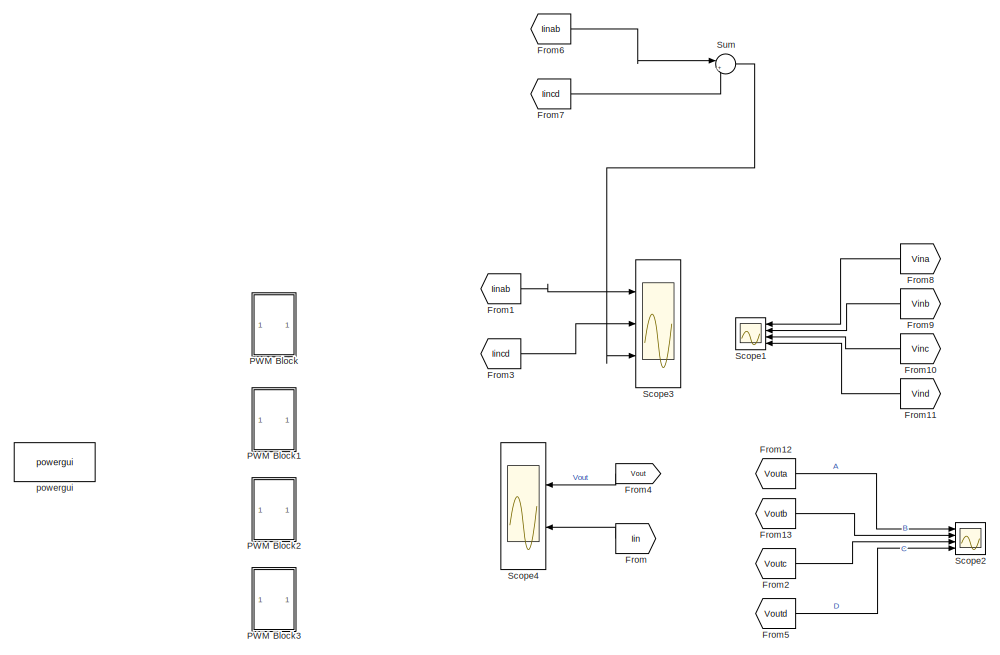
[diagram: root canvas - part 1/3, top center region]
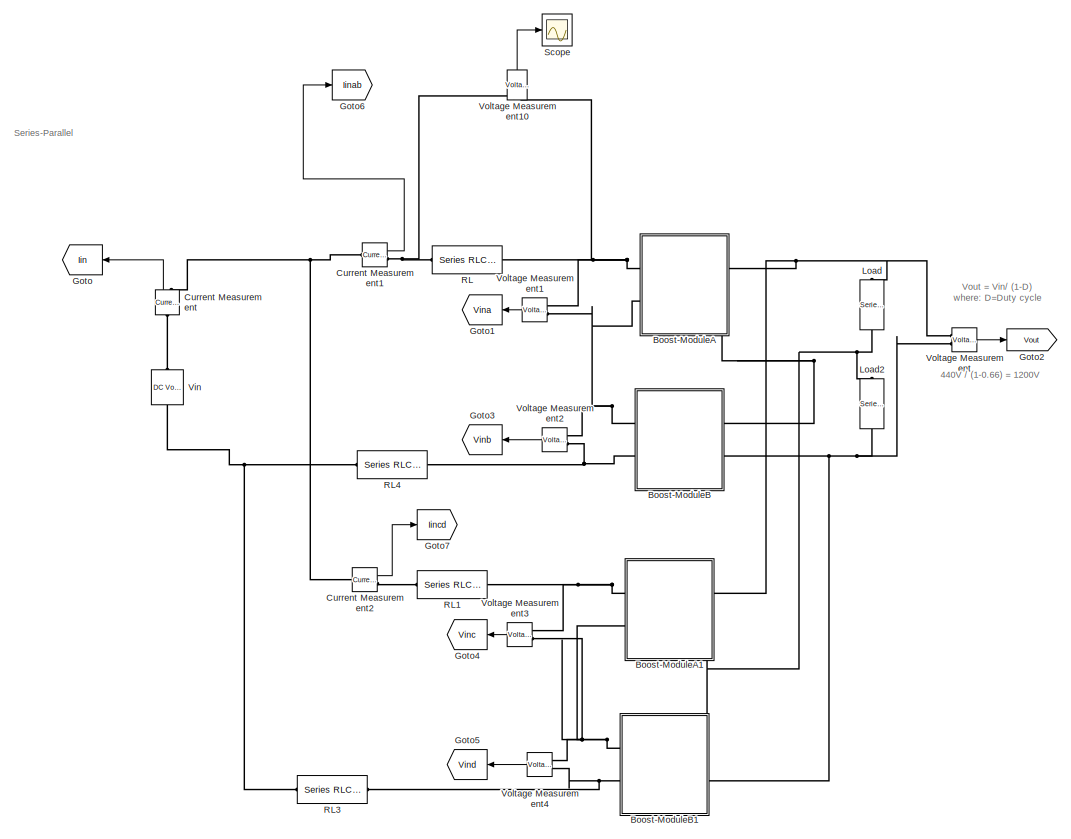
[diagram: root canvas - part 2/3, bottom left region]
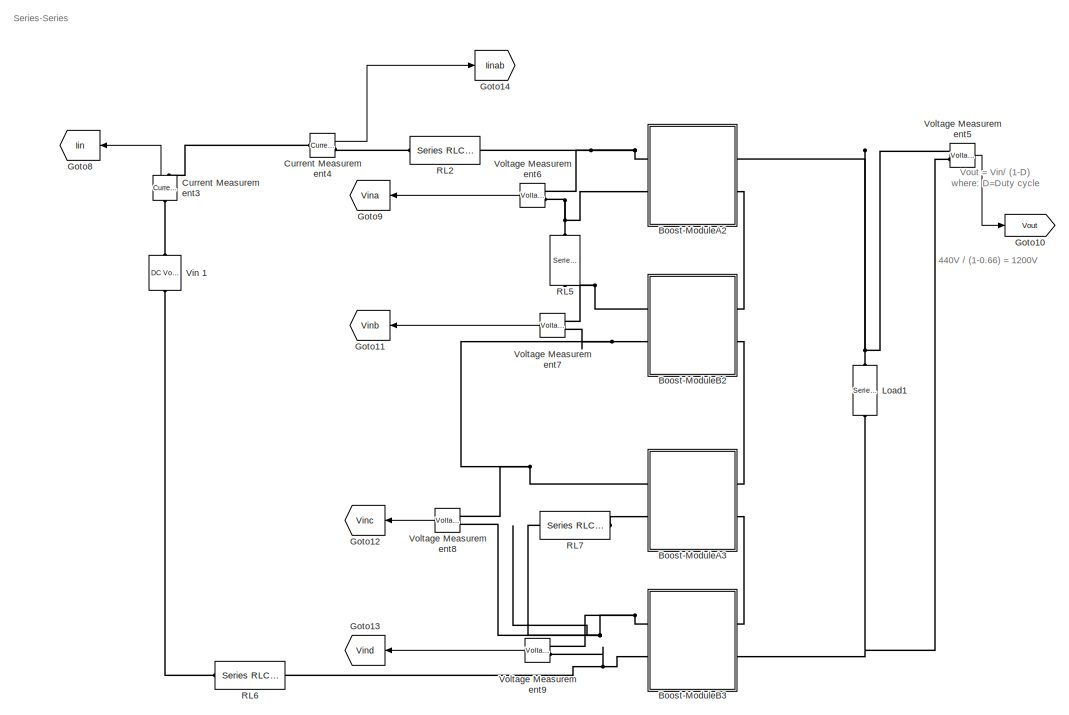
[diagram: root canvas - part 3/3, bottom right region]
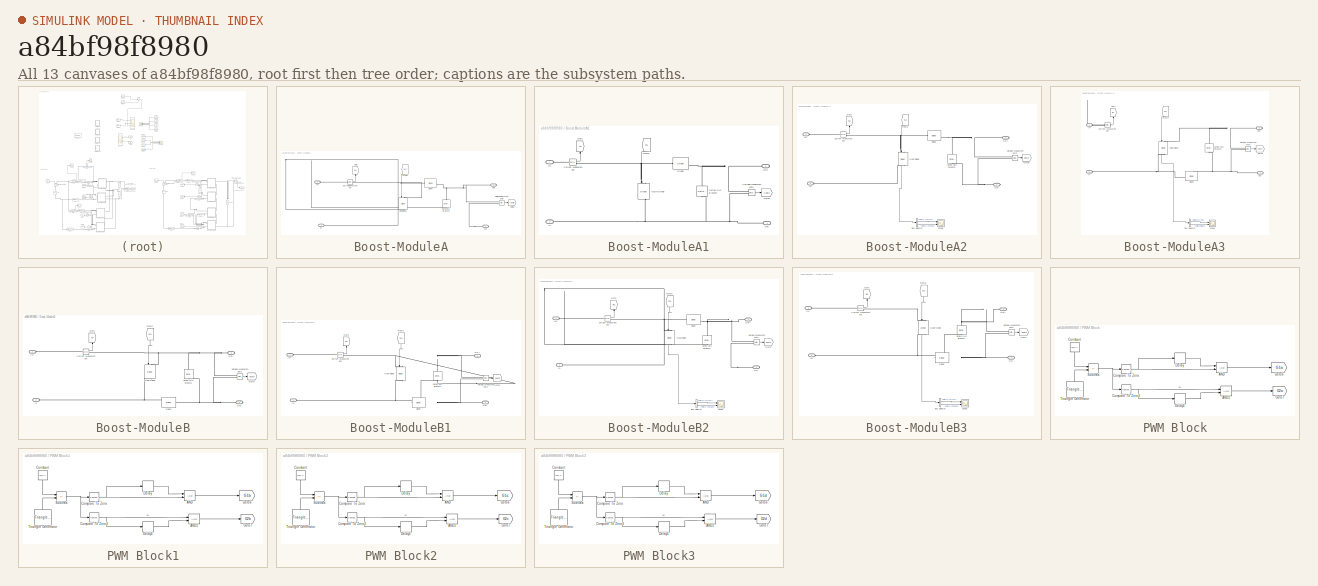
[diagram: thumbnail index - all 13 canvases of the model, root first then tree order]
MODEL slx_a84bf98f8980
KIND model
CONFIG AbsTol = auto
CONFIG EnableMultiTasking = on
CONFIG FixedStep = sampleTime
CONFIG InitFcn = boost_parameters
CONFIG MaxStep = 1e-4
CONFIG MinStep = auto
CONFIG RelTol = 1e-4
CONFIG SampleTimeConstraint = Unconstrained
CONFIG SolverName = FixedStepDiscrete
CONFIG StartTime = 0.0
CONFIG StopTime = 0.5
WORKSPACE source: mxarray member
WORKSPACE Phase1 = 0
BLOCK [SubSystem] Boost-ModuleA
  Ports = [0, 0, 0, 0, 0, 2, 2]
  RequestExecContextInheritance = off
BLOCK [Reference] Boost-ModuleA/Current Measurement  REF=spsCurrentMeasurementLib/Current Measurement
  Ports = [0, 1, 0, 0, 0, 1, 1]
  SourceBlock = spsCurrentMeasurementLib/Current Measurement
  SourceProductBaseCode = PS
  SourceType = Current Measurement
  UserDataPersistent = on
BLOCK [Reference] Boost-ModuleA/Diode  REF=spsDiodeLib/Diode
  Ports = [0, 1, 0, 0, 0, 1, 1]
  SourceBlock = spsDiodeLib/Diode
  SourceProductBaseCode = PS
  SourceType = Diode
BLOCK [From] Boost-ModuleA/From5
  GotoTag = G1a
  NameLocation = left
  TagVisibility = global
BLOCK [Goto] Boost-ModuleA/Goto
  GotoTag = Iina
  NameLocation = right
  TagVisibility = global
BLOCK [Goto] Boost-ModuleA/Goto6
  GotoTag = Vouta
  NameLocation = top
  TagVisibility = global
BLOCK [Reference] Boost-ModuleA/IGBT//Diode  REF=spsIGBTDiodeLib/IGBT//Diode
  NameLocation = left
  Ports = [1, 1, 0, 0, 0, 1, 1]
  SourceBlock = spsIGBTDiodeLib/IGBT//Diode
  SourceProductBaseCode = PS
  SourceType = IGBT/Diode
BLOCK [PMIOPort] Boost-ModuleA/In+
  Side = Left
BLOCK [PMIOPort] Boost-ModuleA/In-
  Port = 2
  Side = Left
BLOCK [PMIOPort] Boost-ModuleA/Out+
  NameLocation = top
  Port = 3
  Side = Right
BLOCK [PMIOPort] Boost-ModuleA/Out-
  NameLocation = top
  Port = 4
  Side = Right
BLOCK [Reference] Boost-ModuleA/Series RLC Branch1  REF=spsSeriesRLCBranchLib/Series RLC Branch
  NameLocation = left
  Ports = [0, 0, 0, 0, 0, 1, 1]
  SourceBlock = spsSeriesRLCBranchLib/Series RLC Branch
  SourceProductBaseCode = PS
  SourceType = Series RLC Branch
BLOCK [Reference] Boost-ModuleA/Voltage Measurement5  REF=spsVoltageMeasurementLib/Voltage Measurement
  Ports = [0, 1, 0, 0, 0, 2]
  SourceBlock = spsVoltageMeasurementLib/Voltage Measurement
  SourceProductBaseCode = PS
  SourceType = Voltage Measurement
  UserDataPersistent = on
BLOCK [SubSystem] Boost-ModuleA1
  Ports = [0, 0, 0, 0, 0, 2, 2]
  RequestExecContextInheritance = off
BLOCK [Reference] Boost-ModuleA1/Current Measurement  REF=spsCurrentMeasurementLib/Current Measurement
  Ports = [0, 1, 0, 0, 0, 1, 1]
  SourceBlock = spsCurrentMeasurementLib/Current Measurement
  SourceProductBaseCode = PS
  SourceType = Current Measurement
  UserDataPersistent = on
BLOCK [Reference] Boost-ModuleA1/Diode  REF=spsDiodeLib/Diode
  Ports = [0, 1, 0, 0, 0, 1, 1]
  SourceBlock = spsDiodeLib/Diode
  SourceProductBaseCode = PS
  SourceType = Diode
BLOCK [From] Boost-ModuleA1/From5
  GotoTag = G1c
  NameLocation = left
  TagVisibility = global
BLOCK [Goto] Boost-ModuleA1/Goto
  GotoTag = Iinc
  NameLocation = right
  TagVisibility = global
BLOCK [Goto] Boost-ModuleA1/Goto6
  GotoTag = Voutc
  NameLocation = top
  TagVisibility = global
BLOCK [Reference] Boost-ModuleA1/IGBT//Diode  REF=spsIGBTDiodeLib/IGBT//Diode
  NameLocation = left
  Ports = [1, 1, 0, 0, 0, 1, 1]
  SourceBlock = spsIGBTDiodeLib/IGBT//Diode
  SourceProductBaseCode = PS
  SourceType = IGBT/Diode
BLOCK [PMIOPort] Boost-ModuleA1/In+
  Side = Left
BLOCK [PMIOPort] Boost-ModuleA1/In-
  Port = 2
  Side = Left
BLOCK [PMIOPort] Boost-ModuleA1/Out+
  NameLocation = top
  Port = 3
  Side = Right
BLOCK [PMIOPort] Boost-ModuleA1/Out-
  NameLocation = top
  Port = 4
  Side = Right
BLOCK [Reference] Boost-ModuleA1/Series RLC Branch1  REF=spsSeriesRLCBranchLib/Series RLC Branch
  NameLocation = left
  Ports = [0, 0, 0, 0, 0, 1, 1]
  SourceBlock = spsSeriesRLCBranchLib/Series RLC Branch
  SourceProductBaseCode = PS
  SourceType = Series RLC Branch
BLOCK [Reference] Boost-ModuleA1/Voltage Measurement5  REF=spsVoltageMeasurementLib/Voltage Measurement
  Ports = [0, 1, 0, 0, 0, 2]
  SourceBlock = spsVoltageMeasurementLib/Voltage Measurement
  SourceProductBaseCode = PS
  SourceType = Voltage Measurement
  UserDataPersistent = on
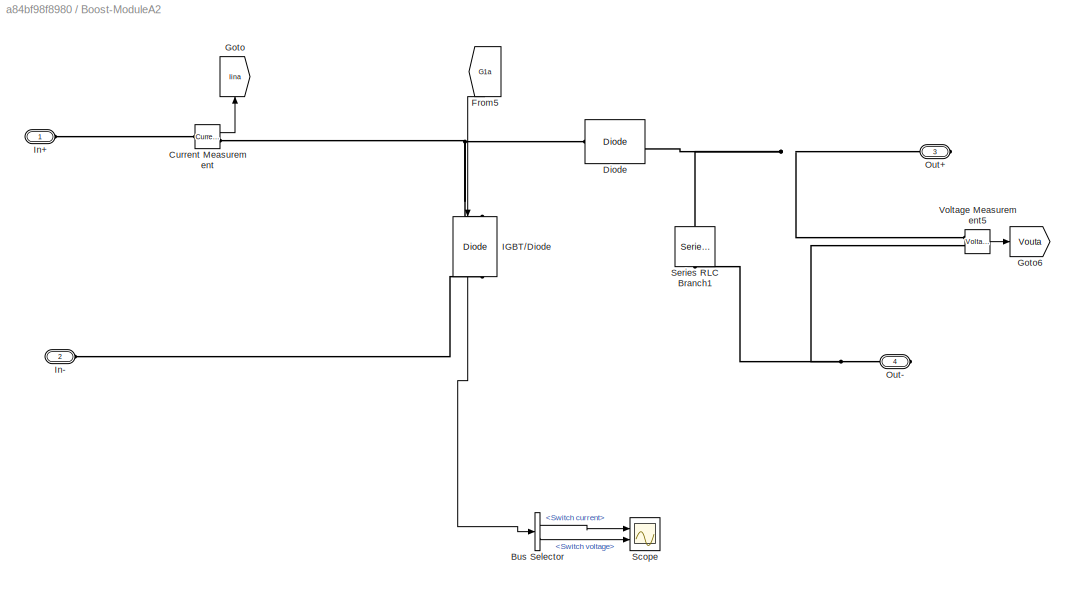
BLOCK [SubSystem] Boost-ModuleA2
  Commented = on
  Ports = [0, 0, 0, 0, 0, 2, 2]
  RequestExecContextInheritance = off
BLOCK [BusSelector] Boost-ModuleA2/Bus Selector
  OutputSignals = Switch current,Switch voltage
  Ports = [1, 2]
BLOCK [Reference] Boost-ModuleA2/Current Measurement  REF=spsCurrentMeasurementLib/Current Measurement
  Ports = [0, 1, 0, 0, 0, 1, 1]
  SourceBlock = spsCurrentMeasurementLib/Current Measurement
  SourceProductBaseCode = PS
  SourceType = Current Measurement
  UserDataPersistent = on
BLOCK [Reference] Boost-ModuleA2/Diode  REF=spsDiodeLib/Diode
  Ports = [0, 1, 0, 0, 0, 1, 1]
  SourceBlock = spsDiodeLib/Diode
  SourceProductBaseCode = PS
  SourceType = Diode
BLOCK [From] Boost-ModuleA2/From5
  GotoTag = G1a
  NameLocation = left
  TagVisibility = global
BLOCK [Goto] Boost-ModuleA2/Goto
  GotoTag = Iina
  NameLocation = right
  TagVisibility = global
BLOCK [Goto] Boost-ModuleA2/Goto6
  GotoTag = Vouta
  NameLocation = top
  TagVisibility = global
BLOCK [Reference] Boost-ModuleA2/IGBT//Diode  REF=spsIGBTDiodeLib/IGBT//Diode
  NameLocation = left
  Ports = [1, 1, 0, 0, 0, 1, 1]
  SourceBlock = spsIGBTDiodeLib/IGBT//Diode
  SourceProductBaseCode = PS
  SourceType = IGBT/Diode
BLOCK [PMIOPort] Boost-ModuleA2/In+
  Side = Left
BLOCK [PMIOPort] Boost-ModuleA2/In-
  Port = 2
  Side = Left
BLOCK [PMIOPort] Boost-ModuleA2/Out+
  NameLocation = top
  Port = 3
  Side = Right
BLOCK [PMIOPort] Boost-ModuleA2/Out-
  NameLocation = top
  Port = 4
  Side = Right
BLOCK [Scope] Boost-ModuleA2/Scope
  Floating = off
  NumInputPorts = 2
  Ports = [2]
  ScopeSpecificationString = Simulink.scopes.TimeScopeBlockCfg('CurrentConfiguration', extmgr.ConfigurationSet(extmgr.Configuration('Core','General UI',true),extmgr.Configuration('Core','Source UI',true),extmgr.Configuration('Sources','WiredSimulink',true,'DataLoggingVariableName','ScopeData7'),extmgr.Configuration('Visuals','Time Domain',true,'SerializedDisplays',{struct('MinYLimReal','-69.37642','MaxYLimReal','783.21996','Y...<+1524ch>
BLOCK [Reference] Boost-ModuleA2/Series RLC Branch1  REF=spsSeriesRLCBranchLib/Series RLC Branch
  NameLocation = left
  Ports = [0, 0, 0, 0, 0, 1, 1]
  SourceBlock = spsSeriesRLCBranchLib/Series RLC Branch
  SourceProductBaseCode = PS
  SourceType = Series RLC Branch
BLOCK [Reference] Boost-ModuleA2/Voltage Measurement5  REF=spsVoltageMeasurementLib/Voltage Measurement
  Ports = [0, 1, 0, 0, 0, 2]
  SourceBlock = spsVoltageMeasurementLib/Voltage Measurement
  SourceProductBaseCode = PS
  SourceType = Voltage Measurement
  UserDataPersistent = on
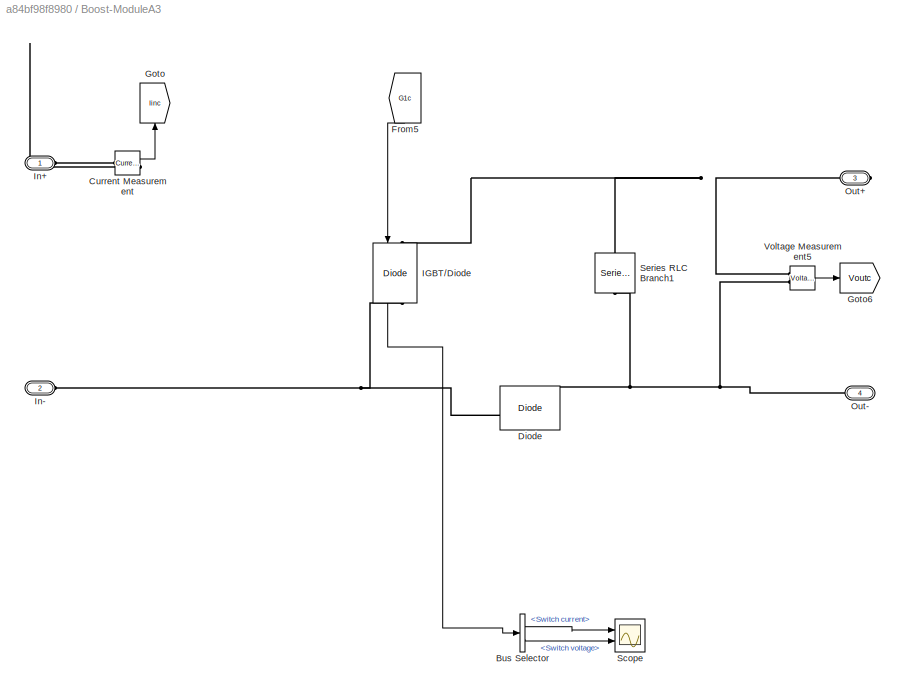
BLOCK [SubSystem] Boost-ModuleA3
  Commented = on
  Ports = [0, 0, 0, 0, 0, 2, 2]
  RequestExecContextInheritance = off
BLOCK [BusSelector] Boost-ModuleA3/Bus Selector
  OutputSignals = Switch current,Switch voltage
  Ports = [1, 2]
BLOCK [Reference] Boost-ModuleA3/Current Measurement  REF=spsCurrentMeasurementLib/Current Measurement
  Ports = [0, 1, 0, 0, 0, 1, 1]
  SourceBlock = spsCurrentMeasurementLib/Current Measurement
  SourceProductBaseCode = PS
  SourceType = Current Measurement
  UserDataPersistent = on
BLOCK [Reference] Boost-ModuleA3/Diode  REF=spsDiodeLib/Diode
  NameLocation = top
  Ports = [0, 1, 0, 0, 0, 1, 1]
  SourceBlock = spsDiodeLib/Diode
  SourceProductBaseCode = PS
  SourceType = Diode
BLOCK [From] Boost-ModuleA3/From5
  GotoTag = G1c
  NameLocation = left
  TagVisibility = global
BLOCK [Goto] Boost-ModuleA3/Goto
  GotoTag = Iinc
  NameLocation = right
  TagVisibility = global
BLOCK [Goto] Boost-ModuleA3/Goto6
  GotoTag = Voutc
  NameLocation = top
  TagVisibility = global
BLOCK [Reference] Boost-ModuleA3/IGBT//Diode  REF=spsIGBTDiodeLib/IGBT//Diode
  NameLocation = left
  Ports = [1, 1, 0, 0, 0, 1, 1]
  SourceBlock = spsIGBTDiodeLib/IGBT//Diode
  SourceProductBaseCode = PS
  SourceType = IGBT/Diode
BLOCK [PMIOPort] Boost-ModuleA3/In+
  Side = Left
BLOCK [PMIOPort] Boost-ModuleA3/In-
  Port = 2
  Side = Left
BLOCK [PMIOPort] Boost-ModuleA3/Out+
  NameLocation = top
  Port = 3
  Side = Right
BLOCK [PMIOPort] Boost-ModuleA3/Out-
  NameLocation = top
  Port = 4
  Side = Right
BLOCK [Scope] Boost-ModuleA3/Scope
  Floating = off
  NumInputPorts = 2
  Ports = [2]
  ScopeSpecificationString = Simulink.scopes.TimeScopeBlockCfg('CurrentConfiguration', extmgr.ConfigurationSet(extmgr.Configuration('Core','General UI',true),extmgr.Configuration('Core','Source UI',true),extmgr.Configuration('Sources','WiredSimulink',true,'DataLoggingVariableName','ScopeData5'),extmgr.Configuration('Visuals','Time Domain',true,'SerializedDisplays',{struct('MinYLimReal','-18.70533','MaxYLimReal','54.0885','YLa...<+1415ch>
BLOCK [Reference] Boost-ModuleA3/Series RLC Branch1  REF=spsSeriesRLCBranchLib/Series RLC Branch
  NameLocation = left
  Ports = [0, 0, 0, 0, 0, 1, 1]
  SourceBlock = spsSeriesRLCBranchLib/Series RLC Branch
  SourceProductBaseCode = PS
  SourceType = Series RLC Branch
BLOCK [Reference] Boost-ModuleA3/Voltage Measurement5  REF=spsVoltageMeasurementLib/Voltage Measurement
  Ports = [0, 1, 0, 0, 0, 2]
  SourceBlock = spsVoltageMeasurementLib/Voltage Measurement
  SourceProductBaseCode = PS
  SourceType = Voltage Measurement
  UserDataPersistent = on
BLOCK [SubSystem] Boost-ModuleB
  Ports = [0, 0, 0, 0, 0, 2, 2]
  RequestExecContextInheritance = off
BLOCK [Reference] Boost-ModuleB/Current Measurement  REF=spsCurrentMeasurementLib/Current Measurement
  Ports = [0, 1, 0, 0, 0, 1, 1]
  SourceBlock = spsCurrentMeasurementLib/Current Measurement
  SourceProductBaseCode = PS
  SourceType = Current Measurement
  UserDataPersistent = on
BLOCK [Reference] Boost-ModuleB/Diode  REF=spsDiodeLib/Diode
  NameLocation = top
  Ports = [0, 1, 0, 0, 0, 1, 1]
  SourceBlock = spsDiodeLib/Diode
  SourceProductBaseCode = PS
  SourceType = Diode
BLOCK [From] Boost-ModuleB/From5
  GotoTag = G1b
  NameLocation = left
  TagVisibility = global
BLOCK [Goto] Boost-ModuleB/Goto
  GotoTag = Iinb
  NameLocation = right
  TagVisibility = global
BLOCK [Goto] Boost-ModuleB/Goto7
  GotoTag = Voutb
  NameLocation = top
  TagVisibility = global
BLOCK [Reference] Boost-ModuleB/IGBT//Diode  REF=spsIGBTDiodeLib/IGBT//Diode
  NameLocation = left
  Ports = [1, 1, 0, 0, 0, 1, 1]
  SourceBlock = spsIGBTDiodeLib/IGBT//Diode
  SourceProductBaseCode = PS
  SourceType = IGBT/Diode
BLOCK [PMIOPort] Boost-ModuleB/In+
  Side = Left
BLOCK [PMIOPort] Boost-ModuleB/In-
  Port = 2
  Side = Left
BLOCK [PMIOPort] Boost-ModuleB/Out+
  NameLocation = top
  Port = 3
  Side = Right
BLOCK [PMIOPort] Boost-ModuleB/Out-
  NameLocation = top
  Port = 4
  Side = Right
BLOCK [Reference] Boost-ModuleB/Series RLC Branch1  REF=spsSeriesRLCBranchLib/Series RLC Branch
  NameLocation = left
  Ports = [0, 0, 0, 0, 0, 1, 1]
  SourceBlock = spsSeriesRLCBranchLib/Series RLC Branch
  SourceProductBaseCode = PS
  SourceType = Series RLC Branch
BLOCK [Reference] Boost-ModuleB/Voltage Measurement6  REF=spsVoltageMeasurementLib/Voltage Measurement
  Ports = [0, 1, 0, 0, 0, 2]
  SourceBlock = spsVoltageMeasurementLib/Voltage Measurement
  SourceProductBaseCode = PS
  SourceType = Voltage Measurement
  UserDataPersistent = on
BLOCK [SubSystem] Boost-ModuleB1
  Ports = [0, 0, 0, 0, 0, 2, 2]
  RequestExecContextInheritance = off
BLOCK [Reference] Boost-ModuleB1/Current Measurement  REF=spsCurrentMeasurementLib/Current Measurement
  Ports = [0, 1, 0, 0, 0, 1, 1]
  SourceBlock = spsCurrentMeasurementLib/Current Measurement
  SourceProductBaseCode = PS
  SourceType = Current Measurement
  UserDataPersistent = on
BLOCK [Reference] Boost-ModuleB1/Diode  REF=spsDiodeLib/Diode
  NameLocation = top
  Ports = [0, 1, 0, 0, 0, 1, 1]
  SourceBlock = spsDiodeLib/Diode
  SourceProductBaseCode = PS
  SourceType = Diode
BLOCK [From] Boost-ModuleB1/From5
  GotoTag = G1d
  NameLocation = left
  TagVisibility = global
BLOCK [Goto] Boost-ModuleB1/Goto
  GotoTag = Iind
  NameLocation = right
  TagVisibility = global
BLOCK [Goto] Boost-ModuleB1/Goto7
  GotoTag = Voutd
  NameLocation = top
  TagVisibility = global
BLOCK [Reference] Boost-ModuleB1/IGBT//Diode  REF=spsIGBTDiodeLib/IGBT//Diode
  NameLocation = left
  Ports = [1, 1, 0, 0, 0, 1, 1]
  SourceBlock = spsIGBTDiodeLib/IGBT//Diode
  SourceProductBaseCode = PS
  SourceType = IGBT/Diode
BLOCK [PMIOPort] Boost-ModuleB1/In+
  Side = Left
BLOCK [PMIOPort] Boost-ModuleB1/In-
  Port = 2
  Side = Left
BLOCK [PMIOPort] Boost-ModuleB1/Out+
  NameLocation = top
  Port = 3
  Side = Right
BLOCK [PMIOPort] Boost-ModuleB1/Out-
  NameLocation = top
  Port = 4
  Side = Right
BLOCK [Reference] Boost-ModuleB1/Series RLC Branch1  REF=spsSeriesRLCBranchLib/Series RLC Branch
  NameLocation = left
  Ports = [0, 0, 0, 0, 0, 1, 1]
  SourceBlock = spsSeriesRLCBranchLib/Series RLC Branch
  SourceProductBaseCode = PS
  SourceType = Series RLC Branch
BLOCK [Reference] Boost-ModuleB1/Voltage Measurement6  REF=spsVoltageMeasurementLib/Voltage Measurement
  Ports = [0, 1, 0, 0, 0, 2]
  SourceBlock = spsVoltageMeasurementLib/Voltage Measurement
  SourceProductBaseCode = PS
  SourceType = Voltage Measurement
  UserDataPersistent = on
BLOCK [SubSystem] Boost-ModuleB2
  Commented = on
  Ports = [0, 0, 0, 0, 0, 2, 2]
  RequestExecContextInheritance = off
BLOCK [BusSelector] Boost-ModuleB2/Bus Selector
  OutputSignals = Switch current,Switch voltage
  Ports = [1, 2]
BLOCK [Reference] Boost-ModuleB2/Current Measurement  REF=spsCurrentMeasurementLib/Current Measurement
  Ports = [0, 1, 0, 0, 0, 1, 1]
  SourceBlock = spsCurrentMeasurementLib/Current Measurement
  SourceProductBaseCode = PS
  SourceType = Current Measurement
  UserDataPersistent = on
BLOCK [Reference] Boost-ModuleB2/Diode  REF=spsDiodeLib/Diode
  Ports = [0, 1, 0, 0, 0, 1, 1]
  SourceBlock = spsDiodeLib/Diode
  SourceProductBaseCode = PS
  SourceType = Diode
BLOCK [From] Boost-ModuleB2/From5
  GotoTag = G1b
  NameLocation = left
  TagVisibility = global
BLOCK [Goto] Boost-ModuleB2/Goto
  GotoTag = Iinb
  NameLocation = right
  TagVisibility = global
BLOCK [Goto] Boost-ModuleB2/Goto7
  GotoTag = Voutb
  NameLocation = top
  TagVisibility = global
BLOCK [Reference] Boost-ModuleB2/IGBT//Diode  REF=spsIGBTDiodeLib/IGBT//Diode
  NameLocation = left
  Ports = [1, 1, 0, 0, 0, 1, 1]
  SourceBlock = spsIGBTDiodeLib/IGBT//Diode
  SourceProductBaseCode = PS
  SourceType = IGBT/Diode
BLOCK [PMIOPort] Boost-ModuleB2/In+
  Side = Left
BLOCK [PMIOPort] Boost-ModuleB2/In-
  Port = 2
  Side = Left
BLOCK [PMIOPort] Boost-ModuleB2/Out+
  NameLocation = top
  Port = 3
  Side = Right
BLOCK [PMIOPort] Boost-ModuleB2/Out-
  NameLocation = top
  Port = 4
  Side = Right
BLOCK [Scope] Boost-ModuleB2/Scope
  Floating = off
  NumInputPorts = 2
  Ports = [2]
  ScopeSpecificationString = Simulink.scopes.TimeScopeBlockCfg('CurrentConfiguration', extmgr.ConfigurationSet(extmgr.Configuration('Core','General UI',true),extmgr.Configuration('Core','Source UI',true),extmgr.Configuration('Sources','WiredSimulink',true,'DataLoggingVariableName','ScopeData1'),extmgr.Configuration('Visuals','Time Domain',true,'SerializedDisplays',{struct('MinYLimReal','-9.82155','MaxYLimReal','34.25574','YLa...<+1475ch>
BLOCK [Reference] Boost-ModuleB2/Series RLC Branch1  REF=spsSeriesRLCBranchLib/Series RLC Branch
  NameLocation = left
  Ports = [0, 0, 0, 0, 0, 1, 1]
  SourceBlock = spsSeriesRLCBranchLib/Series RLC Branch
  SourceProductBaseCode = PS
  SourceType = Series RLC Branch
BLOCK [Reference] Boost-ModuleB2/Voltage Measurement6  REF=spsVoltageMeasurementLib/Voltage Measurement
  Ports = [0, 1, 0, 0, 0, 2]
  SourceBlock = spsVoltageMeasurementLib/Voltage Measurement
  SourceProductBaseCode = PS
  SourceType = Voltage Measurement
  UserDataPersistent = on
BLOCK [SubSystem] Boost-ModuleB3
  Commented = on
  Ports = [0, 0, 0, 0, 0, 2, 2]
  RequestExecContextInheritance = off
BLOCK [BusSelector] Boost-ModuleB3/Bus Selector
  OutputSignals = Switch current,Switch voltage
  Ports = [1, 2]
BLOCK [Reference] Boost-ModuleB3/Current Measurement  REF=spsCurrentMeasurementLib/Current Measurement
  Ports = [0, 1, 0, 0, 0, 1, 1]
  SourceBlock = spsCurrentMeasurementLib/Current Measurement
  SourceProductBaseCode = PS
  SourceType = Current Measurement
  UserDataPersistent = on
BLOCK [Reference] Boost-ModuleB3/Diode  REF=spsDiodeLib/Diode
  NameLocation = top
  Ports = [0, 1, 0, 0, 0, 1, 1]
  SourceBlock = spsDiodeLib/Diode
  SourceProductBaseCode = PS
  SourceType = Diode
BLOCK [From] Boost-ModuleB3/From5
  GotoTag = G1d
  NameLocation = left
  TagVisibility = global
BLOCK [Goto] Boost-ModuleB3/Goto
  GotoTag = Iind
  NameLocation = right
  TagVisibility = global
BLOCK [Goto] Boost-ModuleB3/Goto7
  GotoTag = Voutd
  NameLocation = top
  TagVisibility = global
BLOCK [Reference] Boost-ModuleB3/IGBT//Diode  REF=spsIGBTDiodeLib/IGBT//Diode
  NameLocation = left
  Ports = [1, 1, 0, 0, 0, 1, 1]
  SourceBlock = spsIGBTDiodeLib/IGBT//Diode
  SourceProductBaseCode = PS
  SourceType = IGBT/Diode
BLOCK [PMIOPort] Boost-ModuleB3/In+
  Side = Left
BLOCK [PMIOPort] Boost-ModuleB3/In-
  Port = 2
  Side = Left
BLOCK [PMIOPort] Boost-ModuleB3/Out+
  NameLocation = top
  Port = 3
  Side = Right
BLOCK [PMIOPort] Boost-ModuleB3/Out-
  NameLocation = top
  Port = 4
  Side = Right
BLOCK [Scope] Boost-ModuleB3/Scope
  Floating = off
  NumInputPorts = 2
  Ports = [2]
  ScopeSpecificationString = Simulink.scopes.TimeScopeBlockCfg('CurrentConfiguration', extmgr.ConfigurationSet(extmgr.Configuration('Core','General UI',true),extmgr.Configuration('Core','Source UI',true),extmgr.Configuration('Sources','WiredSimulink',true,'DataLoggingVariableName','ScopeData6'),extmgr.Configuration('Visuals','Time Domain',true),extmgr.Configuration('Tools','Plot Navigation',true),extmgr.Configuration('Tools',...<+40ch>
BLOCK [Reference] Boost-ModuleB3/Series RLC Branch1  REF=spsSeriesRLCBranchLib/Series RLC Branch
  NameLocation = left
  Ports = [0, 0, 0, 0, 0, 1, 1]
  SourceBlock = spsSeriesRLCBranchLib/Series RLC Branch
  SourceProductBaseCode = PS
  SourceType = Series RLC Branch
BLOCK [Reference] Boost-ModuleB3/Voltage Measurement6  REF=spsVoltageMeasurementLib/Voltage Measurement
  Ports = [0, 1, 0, 0, 0, 2]
  SourceBlock = spsVoltageMeasurementLib/Voltage Measurement
  SourceProductBaseCode = PS
  SourceType = Voltage Measurement
  UserDataPersistent = on
BLOCK [Reference] Current Measurement  REF=spsCurrentMeasurementLib/Current Measurement
  NameLocation = right
  Ports = [0, 1, 0, 0, 0, 1, 1]
  SourceBlock = spsCurrentMeasurementLib/Current Measurement
  SourceProductBaseCode = PS
  SourceType = Current Measurement
  UserDataPersistent = on
BLOCK [Reference] Current Measurement1  REF=spsCurrentMeasurementLib/Current Measurement
  Ports = [0, 1, 0, 0, 0, 1, 1]
  SourceBlock = spsCurrentMeasurementLib/Current Measurement
  SourceProductBaseCode = PS
  SourceType = Current Measurement
  UserDataPersistent = on
BLOCK [Reference] Current Measurement2  REF=spsCurrentMeasurementLib/Current Measurement
  Ports = [0, 1, 0, 0, 0, 1, 1]
  SourceBlock = spsCurrentMeasurementLib/Current Measurement
  SourceProductBaseCode = PS
  SourceType = Current Measurement
  UserDataPersistent = on
BLOCK [Reference] Current Measurement3  REF=spsCurrentMeasurementLib/Current Measurement
  Commented = on
  NameLocation = right
  Ports = [0, 1, 0, 0, 0, 1, 1]
  SourceBlock = spsCurrentMeasurementLib/Current Measurement
  SourceProductBaseCode = PS
  SourceType = Current Measurement
  UserDataPersistent = on
BLOCK [Reference] Current Measurement4  REF=spsCurrentMeasurementLib/Current Measurement
  Commented = on
  Ports = [0, 1, 0, 0, 0, 1, 1]
  SourceBlock = spsCurrentMeasurementLib/Current Measurement
  SourceProductBaseCode = PS
  SourceType = Current Measurement
  UserDataPersistent = on
BLOCK [From] From
  GotoTag = Iin
BLOCK [From] From1
  GotoTag = Iinab
BLOCK [From] From10
  GotoTag = Vinc
BLOCK [From] From11
  GotoTag = Vind
BLOCK [From] From12
  GotoTag = Vouta
  TagVisibility = global
BLOCK [From] From13
  GotoTag = Voutb
  TagVisibility = global
BLOCK [From] From2
  GotoTag = Voutc
  TagVisibility = global
BLOCK [From] From3
  GotoTag = Iincd
BLOCK [From] From4
  GotoTag = Vout
  NameLocation = top
BLOCK [From] From5
  GotoTag = Voutd
  TagVisibility = global
BLOCK [From] From6
  GotoTag = Iinab
BLOCK [From] From7
  GotoTag = Iincd
BLOCK [From] From8
  GotoTag = Vina
BLOCK [From] From9
  GotoTag = Vinb
BLOCK [Goto] Goto
  GotoTag = Iin
  NameLocation = top
BLOCK [Goto] Goto1
  GotoTag = Vina
  NameLocation = top
BLOCK [Goto] Goto10
  Commented = on
  GotoTag = Vout
BLOCK [Goto] Goto11
  Commented = on
  GotoTag = Vinb
  NameLocation = top
BLOCK [Goto] Goto12
  Commented = on
  GotoTag = Vinc
  NameLocation = top
BLOCK [Goto] Goto13
  Commented = on
  GotoTag = Vind
  NameLocation = top
BLOCK [Goto] Goto14
  Commented = on
  GotoTag = Iinab
BLOCK [Goto] Goto2
  GotoTag = Vout
BLOCK [Goto] Goto3
  GotoTag = Vinb
  NameLocation = top
BLOCK [Goto] Goto4
  GotoTag = Vinc
  NameLocation = top
BLOCK [Goto] Goto5
  GotoTag = Vind
  NameLocation = top
BLOCK [Goto] Goto6
  GotoTag = Iinab
BLOCK [Goto] Goto7
  GotoTag = Iincd
BLOCK [Goto] Goto8
  Commented = on
  GotoTag = Iin
  NameLocation = top
BLOCK [Goto] Goto9
  Commented = on
  GotoTag = Vina
  NameLocation = top
BLOCK [Reference] Load  REF=spsSeriesRLCBranchLib/Series RLC Branch
  NameLocation = left
  Ports = [0, 0, 0, 0, 0, 1, 1]
  SourceBlock = spsSeriesRLCBranchLib/Series RLC Branch
  SourceProductBaseCode = PS
  SourceType = Series RLC Branch
BLOCK [Reference] Load1  REF=spsSeriesRLCBranchLib/Series RLC Branch
  Commented = on
  NameLocation = left
  Ports = [0, 0, 0, 0, 0, 1, 1]
  SourceBlock = spsSeriesRLCBranchLib/Series RLC Branch
  SourceProductBaseCode = PS
  SourceType = Series RLC Branch
BLOCK [Reference] Load2  REF=spsSeriesRLCBranchLib/Series RLC Branch
  NameLocation = left
  Ports = [0, 0, 0, 0, 0, 1, 1]
  SourceBlock = spsSeriesRLCBranchLib/Series RLC Branch
  SourceProductBaseCode = PS
  SourceType = Series RLC Branch
BLOCK [SubSystem] PWM Block
  Ports = []
  RequestExecContextInheritance = off
BLOCK [Logic] PWM Block/AND
  AllPortsSameDT = off
  IconShape = distinctive
  OutDataTypeStr = boolean
  Ports = [2, 1]
BLOCK [Logic] PWM Block/AND1
  AllPortsSameDT = off
  IconShape = distinctive
  OutDataTypeStr = boolean
  Ports = [2, 1]
BLOCK [Reference] PWM Block/Compare To Zero  REF=simulink/Logic and Bit
Operations/Compare
To Zero
  Ports = [1, 1]
  SourceBlock = simulink/Logic and Bit\nOperations/Compare\nTo Zero
  SourceProductBaseCode = SL
  SourceType = Compare To Zero
BLOCK [Reference] PWM Block/Compare To Zero3  REF=simulink/Logic and Bit
Operations/Compare
To Zero
  Ports = [1, 1]
  SourceBlock = simulink/Logic and Bit\nOperations/Compare\nTo Zero
  SourceProductBaseCode = SL
  SourceType = Compare To Zero
BLOCK [Constant] PWM Block/Constant
  NameLocation = left
  Value = 2*D-1
BLOCK [Delay] PWM Block/Delay
  InputPortMap = u0
  Ports = [1, 1]
BLOCK [Delay] PWM Block/Delay1
  InputPortMap = u0
  Ports = [1, 1]
BLOCK [Goto] PWM Block/Goto6
  GotoTag = G1a
  TagVisibility = global
BLOCK [Goto] PWM Block/Goto7
  GotoTag = G2a
  TagVisibility = global
BLOCK [Sum] PWM Block/Subtract
  IconShape = rectangular
  Inputs = +-
  Ports = [2, 1]
BLOCK [Reference] PWM Block/Triangle Generator  REF=spsTriangleGeneratorLib/Triangle
Generator
  NameLocation = right
  Ports = [0, 1]
  SourceBlock = spsTriangleGeneratorLib/Triangle\nGenerator
  SourceProductBaseCode = PS
  SourceType = Triangle Generator
BLOCK [SubSystem] PWM Block1
  Ports = []
  RequestExecContextInheritance = off
BLOCK [Logic] PWM Block1/AND
  AllPortsSameDT = off
  IconShape = distinctive
  OutDataTypeStr = boolean
  Ports = [2, 1]
BLOCK [Logic] PWM Block1/AND1
  AllPortsSameDT = off
  IconShape = distinctive
  OutDataTypeStr = boolean
  Ports = [2, 1]
BLOCK [Reference] PWM Block1/Compare To Zero  REF=simulink/Logic and Bit
Operations/Compare
To Zero
  Ports = [1, 1]
  SourceBlock = simulink/Logic and Bit\nOperations/Compare\nTo Zero
  SourceProductBaseCode = SL
  SourceType = Compare To Zero
BLOCK [Reference] PWM Block1/Compare To Zero3  REF=simulink/Logic and Bit
Operations/Compare
To Zero
  Ports = [1, 1]
  SourceBlock = simulink/Logic and Bit\nOperations/Compare\nTo Zero
  SourceProductBaseCode = SL
  SourceType = Compare To Zero
BLOCK [Constant] PWM Block1/Constant
  NameLocation = left
  Value = 2*D-1
BLOCK [Delay] PWM Block1/Delay
  InputPortMap = u0
  Ports = [1, 1]
BLOCK [Delay] PWM Block1/Delay1
  InputPortMap = u0
  Ports = [1, 1]
BLOCK [Goto] PWM Block1/Goto6
  GotoTag = G1b
  TagVisibility = global
BLOCK [Goto] PWM Block1/Goto7
  GotoTag = G2b
  TagVisibility = global
BLOCK [Sum] PWM Block1/Subtract
  IconShape = rectangular
  Inputs = +-
  Ports = [2, 1]
BLOCK [Reference] PWM Block1/Triangle Generator  REF=spsTriangleGeneratorLib/Triangle
Generator
  NameLocation = right
  Ports = [0, 1]
  SourceBlock = spsTriangleGeneratorLib/Triangle\nGenerator
  SourceProductBaseCode = PS
  SourceType = Triangle Generator
BLOCK [SubSystem] PWM Block2
  Ports = []
  RequestExecContextInheritance = off
BLOCK [Logic] PWM Block2/AND
  AllPortsSameDT = off
  IconShape = distinctive
  OutDataTypeStr = boolean
  Ports = [2, 1]
BLOCK [Logic] PWM Block2/AND1
  AllPortsSameDT = off
  IconShape = distinctive
  OutDataTypeStr = boolean
  Ports = [2, 1]
BLOCK [Reference] PWM Block2/Compare To Zero  REF=simulink/Logic and Bit
Operations/Compare
To Zero
  Ports = [1, 1]
  SourceBlock = simulink/Logic and Bit\nOperations/Compare\nTo Zero
  SourceProductBaseCode = SL
  SourceType = Compare To Zero
BLOCK [Reference] PWM Block2/Compare To Zero3  REF=simulink/Logic and Bit
Operations/Compare
To Zero
  Ports = [1, 1]
  SourceBlock = simulink/Logic and Bit\nOperations/Compare\nTo Zero
  SourceProductBaseCode = SL
  SourceType = Compare To Zero
BLOCK [Constant] PWM Block2/Constant
  NameLocation = left
  Value = 2*D-1
BLOCK [Delay] PWM Block2/Delay
  InputPortMap = u0
  Ports = [1, 1]
BLOCK [Delay] PWM Block2/Delay1
  InputPortMap = u0
  Ports = [1, 1]
BLOCK [Goto] PWM Block2/Goto6
  GotoTag = G1c
  TagVisibility = global
BLOCK [Goto] PWM Block2/Goto7
  GotoTag = G2c
  TagVisibility = global
BLOCK [Sum] PWM Block2/Subtract
  IconShape = rectangular
  Inputs = +-
  Ports = [2, 1]
BLOCK [Reference] PWM Block2/Triangle Generator  REF=spsTriangleGeneratorLib/Triangle
Generator
  NameLocation = right
  Ports = [0, 1]
  SourceBlock = spsTriangleGeneratorLib/Triangle\nGenerator
  SourceProductBaseCode = PS
  SourceType = Triangle Generator
BLOCK [SubSystem] PWM Block3
  Ports = []
  RequestExecContextInheritance = off
BLOCK [Logic] PWM Block3/AND
  AllPortsSameDT = off
  IconShape = distinctive
  OutDataTypeStr = boolean
  Ports = [2, 1]
BLOCK [Logic] PWM Block3/AND1
  AllPortsSameDT = off
  IconShape = distinctive
  OutDataTypeStr = boolean
  Ports = [2, 1]
BLOCK [Reference] PWM Block3/Compare To Zero  REF=simulink/Logic and Bit
Operations/Compare
To Zero
  Ports = [1, 1]
  SourceBlock = simulink/Logic and Bit\nOperations/Compare\nTo Zero
  SourceProductBaseCode = SL
  SourceType = Compare To Zero
BLOCK [Reference] PWM Block3/Compare To Zero3  REF=simulink/Logic and Bit
Operations/Compare
To Zero
  Ports = [1, 1]
  SourceBlock = simulink/Logic and Bit\nOperations/Compare\nTo Zero
  SourceProductBaseCode = SL
  SourceType = Compare To Zero
BLOCK [Constant] PWM Block3/Constant
  NameLocation = left
  Value = 2*D-1
BLOCK [Delay] PWM Block3/Delay
  InputPortMap = u0
  Ports = [1, 1]
BLOCK [Delay] PWM Block3/Delay1
  InputPortMap = u0
  Ports = [1, 1]
BLOCK [Goto] PWM Block3/Goto6
  GotoTag = G1d
  TagVisibility = global
BLOCK [Goto] PWM Block3/Goto7
  GotoTag = G2d
  TagVisibility = global
BLOCK [Sum] PWM Block3/Subtract
  IconShape = rectangular
  Inputs = +-
  Ports = [2, 1]
BLOCK [Reference] PWM Block3/Triangle Generator  REF=spsTriangleGeneratorLib/Triangle
Generator
  NameLocation = right
  Ports = [0, 1]
  SourceBlock = spsTriangleGeneratorLib/Triangle\nGenerator
  SourceProductBaseCode = PS
  SourceType = Triangle Generator
BLOCK [Reference] RL  REF=spsSeriesRLCBranchLib/Series RLC Branch
  Ports = [0, 0, 0, 0, 0, 1, 1]
  SourceBlock = spsSeriesRLCBranchLib/Series RLC Branch
  SourceProductBaseCode = PS
  SourceType = Series RLC Branch
BLOCK [Reference] RL1  REF=spsSeriesRLCBranchLib/Series RLC Branch
  Ports = [0, 0, 0, 0, 0, 1, 1]
  SourceBlock = spsSeriesRLCBranchLib/Series RLC Branch
  SourceProductBaseCode = PS
  SourceType = Series RLC Branch
BLOCK [Reference] RL2  REF=spsSeriesRLCBranchLib/Series RLC Branch
  Commented = on
  Ports = [0, 0, 0, 0, 0, 1, 1]
  SourceBlock = spsSeriesRLCBranchLib/Series RLC Branch
  SourceProductBaseCode = PS
  SourceType = Series RLC Branch
BLOCK [Reference] RL3  REF=spsSeriesRLCBranchLib/Series RLC Branch
  Ports = [0, 0, 0, 0, 0, 1, 1]
  SourceBlock = spsSeriesRLCBranchLib/Series RLC Branch
  SourceProductBaseCode = PS
  SourceType = Series RLC Branch
BLOCK [Reference] RL4  REF=spsSeriesRLCBranchLib/Series RLC Branch
  Ports = [0, 0, 0, 0, 0, 1, 1]
  SourceBlock = spsSeriesRLCBranchLib/Series RLC Branch
  SourceProductBaseCode = PS
  SourceType = Series RLC Branch
BLOCK [Reference] RL5  REF=spsSeriesRLCBranchLib/Series RLC Branch
  Commented = on
  NameLocation = left
  Ports = [0, 0, 0, 0, 0, 1, 1]
  SourceBlock = spsSeriesRLCBranchLib/Series RLC Branch
  SourceProductBaseCode = PS
  SourceType = Series RLC Branch
BLOCK [Reference] RL6  REF=spsSeriesRLCBranchLib/Series RLC Branch
  Commented = on
  Ports = [0, 0, 0, 0, 0, 1, 1]
  SourceBlock = spsSeriesRLCBranchLib/Series RLC Branch
  SourceProductBaseCode = PS
  SourceType = Series RLC Branch
BLOCK [Reference] RL7  REF=spsSeriesRLCBranchLib/Series RLC Branch
  Commented = on
  Ports = [0, 0, 0, 0, 0, 1, 1]
  SourceBlock = spsSeriesRLCBranchLib/Series RLC Branch
  SourceProductBaseCode = PS
  SourceType = Series RLC Branch
BLOCK [Scope] Scope
  Floating = off
  NumInputPorts = 1
  Ports = [1]
  ScopeSpecificationString = Simulink.scopes.TimeScopeBlockCfg('CurrentConfiguration', extmgr.ConfigurationSet(extmgr.Configuration('Core','General UI',true),extmgr.Configuration('Core','Source UI',true),extmgr.Configuration('Sources','WiredSimulink',true,'DataLoggingVariableName','ScopeData1'),extmgr.Configuration('Visuals','Time Domain',true,'SerializedDisplays',{struct('MinYLimReal','-516.15712','MaxYLimReal','744.60629','...<+1438ch>
BLOCK [Scope] Scope1
  Floating = off
  NameLocation = top
  NumInputPorts = 4
  Ports = [4]
  ScopeSpecificationString = Simulink.scopes.TimeScopeBlockCfg('CurrentConfiguration', extmgr.ConfigurationSet(extmgr.Configuration('Core','General UI',true),extmgr.Configuration('Core','Source UI',true),extmgr.Configuration('Sources','WiredSimulink',true,'DataLoggingVariableName','ScopeData2'),extmgr.Configuration('Visuals','Time Domain',true,'SerializedDisplays',{struct('MinYLimReal','-228.18608','MaxYLimReal','1142.14781',...<+1631ch>
BLOCK [Scope] Scope2
  Floating = off
  NumInputPorts = 4
  Ports = [4]
  ScopeSpecificationString = Simulink.scopes.TimeScopeBlockCfg('CurrentConfiguration', extmgr.ConfigurationSet(extmgr.Configuration('Core','General UI',true),extmgr.Configuration('Core','Source UI',true),extmgr.Configuration('Sources','WiredSimulink',true,'DataLoggingVariableName','ScopeData3'),extmgr.Configuration('Visuals','Time Domain',true,'SerializedDisplays',{struct('MinYLimReal','588.72063','MaxYLimReal','604.11161','Y...<+1519ch>
BLOCK [Scope] Scope3
  Floating = off
  NumInputPorts = 3
  Ports = [3]
  ScopeSpecificationString = Simulink.scopes.TimeScopeBlockCfg('CurrentConfiguration', extmgr.ConfigurationSet(extmgr.Configuration('Core','General UI',true),extmgr.Configuration('Core','Source UI',true),extmgr.Configuration('Sources','WiredSimulink',true,'DataLoggingVariableName','ScopeData4'),extmgr.Configuration('Visuals','Time Domain',true,'SerializedDisplays',{struct('MinYLimReal','7.37483','MaxYLimReal','24.79271','YLab...<+1533ch>
BLOCK [Scope] Scope4
  Floating = off
  NameLocation = top
  NumInputPorts = 2
  Ports = [2]
  ScopeSpecificationString = Simulink.scopes.TimeScopeBlockCfg('CurrentConfiguration', extmgr.ConfigurationSet(extmgr.Configuration('Core','General UI',true),extmgr.Configuration('Core','Source UI',true),extmgr.Configuration('Sources','WiredSimulink',true),extmgr.Configuration('Visuals','Time Domain',true,'SerializedDisplays',{struct('MinYLimReal','-330.44817','MaxYLimReal','2974.03761','YLabelReal','','MinYLimMag',' 0.00000'...<+2029ch>
BLOCK [Sum] Sum
  Inputs = |++
  Ports = [2, 1]
BLOCK [Reference] Vin     REF=spsDCVoltageSourceLib/DC Voltage Source
  NameLocation = left
  Ports = [0, 0, 0, 0, 0, 1, 1]
  SourceBlock = spsDCVoltageSourceLib/DC Voltage Source
  SourceProductBaseCode = PS
  SourceType = DC Voltage Source
BLOCK [Reference] Vin   1  REF=spsDCVoltageSourceLib/DC Voltage Source
  Commented = on
  NameLocation = left
  Ports = [0, 0, 0, 0, 0, 1, 1]
  SourceBlock = spsDCVoltageSourceLib/DC Voltage Source
  SourceProductBaseCode = PS
  SourceType = DC Voltage Source
BLOCK [Reference] Voltage Measurement  REF=spsVoltageMeasurementLib/Voltage Measurement
  Ports = [0, 1, 0, 0, 0, 2]
  SourceBlock = spsVoltageMeasurementLib/Voltage Measurement
  SourceProductBaseCode = PS
  SourceType = Voltage Measurement
  UserDataPersistent = on
BLOCK [Reference] Voltage Measurement1  REF=spsVoltageMeasurementLib/Voltage Measurement
  Ports = [0, 1, 0, 0, 0, 2]
  SourceBlock = spsVoltageMeasurementLib/Voltage Measurement
  SourceProductBaseCode = PS
  SourceType = Voltage Measurement
  UserDataPersistent = on
BLOCK [Reference] Voltage Measurement10  REF=spsVoltageMeasurementLib/Voltage Measurement
  NameLocation = right
  Ports = [0, 1, 0, 0, 0, 2]
  SourceBlock = spsVoltageMeasurementLib/Voltage Measurement
  SourceProductBaseCode = PS
  SourceType = Voltage Measurement
  UserDataPersistent = on
BLOCK [Reference] Voltage Measurement2  REF=spsVoltageMeasurementLib/Voltage Measurement
  Ports = [0, 1, 0, 0, 0, 2]
  SourceBlock = spsVoltageMeasurementLib/Voltage Measurement
  SourceProductBaseCode = PS
  SourceType = Voltage Measurement
  UserDataPersistent = on
BLOCK [Reference] Voltage Measurement3  REF=spsVoltageMeasurementLib/Voltage Measurement
  Ports = [0, 1, 0, 0, 0, 2]
  SourceBlock = spsVoltageMeasurementLib/Voltage Measurement
  SourceProductBaseCode = PS
  SourceType = Voltage Measurement
  UserDataPersistent = on
BLOCK [Reference] Voltage Measurement4  REF=spsVoltageMeasurementLib/Voltage Measurement
  Ports = [0, 1, 0, 0, 0, 2]
  SourceBlock = spsVoltageMeasurementLib/Voltage Measurement
  SourceProductBaseCode = PS
  SourceType = Voltage Measurement
  UserDataPersistent = on
BLOCK [Reference] Voltage Measurement5  REF=spsVoltageMeasurementLib/Voltage Measurement
  Commented = on
  Ports = [0, 1, 0, 0, 0, 2]
  SourceBlock = spsVoltageMeasurementLib/Voltage Measurement
  SourceProductBaseCode = PS
  SourceType = Voltage Measurement
  UserDataPersistent = on
BLOCK [Reference] Voltage Measurement6  REF=spsVoltageMeasurementLib/Voltage Measurement
  Commented = on
  Ports = [0, 1, 0, 0, 0, 2]
  SourceBlock = spsVoltageMeasurementLib/Voltage Measurement
  SourceProductBaseCode = PS
  SourceType = Voltage Measurement
  UserDataPersistent = on
BLOCK [Reference] Voltage Measurement7  REF=spsVoltageMeasurementLib/Voltage Measurement
  Commented = on
  Ports = [0, 1, 0, 0, 0, 2]
  SourceBlock = spsVoltageMeasurementLib/Voltage Measurement
  SourceProductBaseCode = PS
  SourceType = Voltage Measurement
  UserDataPersistent = on
BLOCK [Reference] Voltage Measurement8  REF=spsVoltageMeasurementLib/Voltage Measurement
  Commented = on
  Ports = [0, 1, 0, 0, 0, 2]
  SourceBlock = spsVoltageMeasurementLib/Voltage Measurement
  SourceProductBaseCode = PS
  SourceType = Voltage Measurement
  UserDataPersistent = on
BLOCK [Reference] Voltage Measurement9  REF=spsVoltageMeasurementLib/Voltage Measurement
  Commented = on
  Ports = [0, 1, 0, 0, 0, 2]
  SourceBlock = spsVoltageMeasurementLib/Voltage Measurement
  SourceProductBaseCode = PS
  SourceType = Voltage Measurement
  UserDataPersistent = on
BLOCK [Reference] powergui  REF=spspowerguiLib/powergui
  Ports = []
  Priority = 1
  SourceBlock = spspowerguiLib/powergui
  SourceProductBaseCode = PS
  SourceType = PSB option menu block
ANNOTATION (root): 440V / (1-0.66) = 1200V
ANNOTATION (root): Vout = Vin/ (1-D) where: D=Duty cycle
ANNOTATION (root): Series-Parallel
ANNOTATION (root): Series-Series
LINE Boost-ModuleA/Current Measurement:1 -> Boost-ModuleA/Goto:1
LINE Boost-ModuleA/From5:1 -> Boost-ModuleA/IGBT//Diode:1
LINE Boost-ModuleA/Voltage Measurement5:1 -> Boost-ModuleA/Goto6:1
LINE Boost-ModuleA1/Current Measurement:1 -> Boost-ModuleA1/Goto:1
LINE Boost-ModuleA1/From5:1 -> Boost-ModuleA1/IGBT//Diode:1
LINE Boost-ModuleA1/Voltage Measurement5:1 -> Boost-ModuleA1/Goto6:1
LINE Boost-ModuleA2/Bus Selector:1 -> Boost-ModuleA2/Scope:1
LINE Boost-ModuleA2/Bus Selector:2 -> Boost-ModuleA2/Scope:2
LINE Boost-ModuleA2/Current Measurement:1 -> Boost-ModuleA2/Goto:1
LINE Boost-ModuleA2/From5:1 -> Boost-ModuleA2/IGBT//Diode:1
LINE Boost-ModuleA2/IGBT//Diode:1 -> Boost-ModuleA2/Bus Selector:1
LINE Boost-ModuleA2/Voltage Measurement5:1 -> Boost-ModuleA2/Goto6:1
LINE Boost-ModuleA3/Bus Selector:1 -> Boost-ModuleA3/Scope:1
LINE Boost-ModuleA3/Bus Selector:2 -> Boost-ModuleA3/Scope:2
LINE Boost-ModuleA3/Current Measurement:1 -> Boost-ModuleA3/Goto:1
LINE Boost-ModuleA3/From5:1 -> Boost-ModuleA3/IGBT//Diode:1
LINE Boost-ModuleA3/IGBT//Diode:1 -> Boost-ModuleA3/Bus Selector:1
LINE Boost-ModuleA3/Voltage Measurement5:1 -> Boost-ModuleA3/Goto6:1
LINE Boost-ModuleB/Current Measurement:1 -> Boost-ModuleB/Goto:1
LINE Boost-ModuleB/From5:1 -> Boost-ModuleB/IGBT//Diode:1
LINE Boost-ModuleB/Voltage Measurement6:1 -> Boost-ModuleB/Goto7:1
LINE Boost-ModuleB1/Current Measurement:1 -> Boost-ModuleB1/Goto:1
LINE Boost-ModuleB1/From5:1 -> Boost-ModuleB1/IGBT//Diode:1
LINE Boost-ModuleB1/Voltage Measurement6:1 -> Boost-ModuleB1/Goto7:1
LINE Boost-ModuleB2/Bus Selector:1 -> Boost-ModuleB2/Scope:1
LINE Boost-ModuleB2/Bus Selector:2 -> Boost-ModuleB2/Scope:2
LINE Boost-ModuleB2/Current Measurement:1 -> Boost-ModuleB2/Goto:1
LINE Boost-ModuleB2/From5:1 -> Boost-ModuleB2/IGBT//Diode:1
LINE Boost-ModuleB2/IGBT//Diode:1 -> Boost-ModuleB2/Bus Selector:1
LINE Boost-ModuleB2/Voltage Measurement6:1 -> Boost-ModuleB2/Goto7:1
LINE Boost-ModuleB3/Bus Selector:1 -> Boost-ModuleB3/Scope:1
LINE Boost-ModuleB3/Bus Selector:2 -> Boost-ModuleB3/Scope:2
LINE Boost-ModuleB3/Current Measurement:1 -> Boost-ModuleB3/Goto:1
LINE Boost-ModuleB3/From5:1 -> Boost-ModuleB3/IGBT//Diode:1
LINE Boost-ModuleB3/IGBT//Diode:1 -> Boost-ModuleB3/Bus Selector:1
LINE Boost-ModuleB3/Voltage Measurement6:1 -> Boost-ModuleB3/Goto7:1
LINE Current Measurement1:1 -> Goto6:1
LINE Current Measurement2:1 -> Goto7:1
LINE Current Measurement3:1 -> Goto8:1
LINE Current Measurement4:1 -> Goto14:1
LINE Current Measurement:1 -> Goto:1
LINE From10:1 -> Scope1:3
LINE From11:1 -> Scope1:4
LINE From12:1 -> Scope2:1
LINE From13:1 -> Scope2:2
LINE From1:1 -> Scope3:1
LINE From2:1 -> Scope2:3
LINE From3:1 -> Scope3:2
LINE From4:1 -> Scope4:1
LINE From5:1 -> Scope2:4
LINE From6:1 -> Sum:1
LINE From7:1 -> Sum:2
LINE From8:1 -> Scope1:1
LINE From9:1 -> Scope1:2
LINE From:1 -> Scope4:2
LINE PWM Block/AND1:1 -> PWM Block/Goto7:1
LINE PWM Block/AND:1 -> PWM Block/Goto6:1
NET PWM Block/Compare To Zero3:1 -> PWM Block/AND1:1, PWM Block/Delay1:1
NET PWM Block/Compare To Zero:1 -> PWM Block/AND:2, PWM Block/Delay:1
LINE PWM Block/Constant:1 -> PWM Block/Subtract:1
LINE PWM Block/Delay1:1 -> PWM Block/AND1:2
LINE PWM Block/Delay:1 -> PWM Block/AND:1
NET PWM Block/Subtract:1 -> PWM Block/Compare To Zero3:1, PWM Block/Compare To Zero:1
LINE PWM Block/Triangle Generator:1 -> PWM Block/Subtract:2
LINE PWM Block1/AND1:1 -> PWM Block1/Goto7:1
LINE PWM Block1/AND:1 -> PWM Block1/Goto6:1
NET PWM Block1/Compare To Zero3:1 -> PWM Block1/AND1:1, PWM Block1/Delay1:1
NET PWM Block1/Compare To Zero:1 -> PWM Block1/AND:2, PWM Block1/Delay:1
LINE PWM Block1/Constant:1 -> PWM Block1/Subtract:1
LINE PWM Block1/Delay1:1 -> PWM Block1/AND1:2
LINE PWM Block1/Delay:1 -> PWM Block1/AND:1
NET PWM Block1/Subtract:1 -> PWM Block1/Compare To Zero3:1, PWM Block1/Compare To Zero:1
LINE PWM Block1/Triangle Generator:1 -> PWM Block1/Subtract:2
LINE PWM Block2/AND1:1 -> PWM Block2/Goto7:1
LINE PWM Block2/AND:1 -> PWM Block2/Goto6:1
NET PWM Block2/Compare To Zero3:1 -> PWM Block2/AND1:1, PWM Block2/Delay1:1
NET PWM Block2/Compare To Zero:1 -> PWM Block2/AND:2, PWM Block2/Delay:1
LINE PWM Block2/Constant:1 -> PWM Block2/Subtract:1
LINE PWM Block2/Delay1:1 -> PWM Block2/AND1:2
LINE PWM Block2/Delay:1 -> PWM Block2/AND:1
NET PWM Block2/Subtract:1 -> PWM Block2/Compare To Zero3:1, PWM Block2/Compare To Zero:1
LINE PWM Block2/Triangle Generator:1 -> PWM Block2/Subtract:2
LINE PWM Block3/AND1:1 -> PWM Block3/Goto7:1
LINE PWM Block3/AND:1 -> PWM Block3/Goto6:1
NET PWM Block3/Compare To Zero3:1 -> PWM Block3/AND1:1, PWM Block3/Delay1:1
NET PWM Block3/Compare To Zero:1 -> PWM Block3/AND:2, PWM Block3/Delay:1
LINE PWM Block3/Constant:1 -> PWM Block3/Subtract:1
LINE PWM Block3/Delay1:1 -> PWM Block3/AND1:2
LINE PWM Block3/Delay:1 -> PWM Block3/AND:1
NET PWM Block3/Subtract:1 -> PWM Block3/Compare To Zero3:1, PWM Block3/Compare To Zero:1
LINE PWM Block3/Triangle Generator:1 -> PWM Block3/Subtract:2
LINE Sum:1 -> Scope3:3
LINE Voltage Measurement10:1 -> Scope:1
LINE Voltage Measurement1:1 -> Goto1:1
LINE Voltage Measurement2:1 -> Goto3:1
LINE Voltage Measurement3:1 -> Goto4:1
LINE Voltage Measurement4:1 -> Goto5:1
LINE Voltage Measurement5:1 -> Goto10:1
LINE Voltage Measurement6:1 -> Goto9:1
LINE Voltage Measurement7:1 -> Goto11:1
LINE Voltage Measurement8:1 -> Goto12:1
LINE Voltage Measurement9:1 -> Goto13:1
LINE Voltage Measurement:1 -> Goto2:1
PLINE Boost-ModuleA/Current Measurement:LConn1 -- Boost-ModuleA/In+:RConn1
PNET net1: Boost-ModuleA/Current Measurement:RConn1 -- Boost-ModuleA/Diode:LConn1 -- Boost-ModuleA/IGBT//Diode:LConn1
PNET net2: Boost-ModuleA/Diode:RConn1 -- Boost-ModuleA/Out+:RConn1 -- Boost-ModuleA/Series RLC Branch1:LConn1 -- Boost-ModuleA/Voltage Measurement5:LConn1
PNET net3: Boost-ModuleA/IGBT//Diode:RConn1 -- Boost-ModuleA/In-:RConn1 -- Boost-ModuleA/Out-:RConn1 -- Boost-ModuleA/Series RLC Branch1:RConn1 -- Boost-ModuleA/Voltage Measurement5:LConn2
PLINE Boost-ModuleA1/Current Measurement:LConn1 -- Boost-ModuleA1/In+:RConn1
PNET net4: Boost-ModuleA1/Current Measurement:RConn1 -- Boost-ModuleA1/Diode:LConn1 -- Boost-ModuleA1/IGBT//Diode:LConn1
PNET net5: Boost-ModuleA1/Diode:RConn1 -- Boost-ModuleA1/Out+:RConn1 -- Boost-ModuleA1/Series RLC Branch1:LConn1 -- Boost-ModuleA1/Voltage Measurement5:LConn1
PNET net6: Boost-ModuleA1/IGBT//Diode:RConn1 -- Boost-ModuleA1/In-:RConn1 -- Boost-ModuleA1/Out-:RConn1 -- Boost-ModuleA1/Series RLC Branch1:RConn1 -- Boost-ModuleA1/Voltage Measurement5:LConn2
PNET net7: Boost-ModuleA1:LConn1 -- RL1:RConn1 -- Voltage Measurement3:LConn1
PNET net8: Boost-ModuleA1:LConn2 -- Boost-ModuleB1:LConn1 -- Voltage Measurement3:LConn2 -- Voltage Measurement4:LConn1
PNET net9: Boost-ModuleA1:RConn1 -- Boost-ModuleA:RConn1 -- Load:LConn1 -- Voltage Measurement:LConn1
PNET net10: Boost-ModuleA1:RConn2 -- Boost-ModuleA:RConn2 -- Boost-ModuleB1:RConn1 -- Boost-ModuleB:RConn1 -- Load2:LConn1 -- Load:RConn1
PLINE Boost-ModuleA2/Current Measurement:LConn1 -- Boost-ModuleA2/In+:RConn1
PNET net11: Boost-ModuleA2/Current Measurement:RConn1 -- Boost-ModuleA2/Diode:LConn1 -- Boost-ModuleA2/IGBT//Diode:LConn1
PNET net12: Boost-ModuleA2/Diode:RConn1 -- Boost-ModuleA2/Out+:RConn1 -- Boost-ModuleA2/Series RLC Branch1:LConn1 -- Boost-ModuleA2/Voltage Measurement5:LConn1
PLINE Boost-ModuleA2/IGBT//Diode:RConn1 -- Boost-ModuleA2/In-:RConn1
PNET net13: Boost-ModuleA2/Out-:RConn1 -- Boost-ModuleA2/Series RLC Branch1:RConn1 -- Boost-ModuleA2/Voltage Measurement5:LConn2
PNET net14: Boost-ModuleA2:LConn1 -- RL2:RConn1 -- Voltage Measurement6:LConn1
PNET net15: Boost-ModuleA2:LConn2 -- RL5:LConn1 -- Voltage Measurement6:LConn2
PNET net16: Boost-ModuleA2:RConn1 -- Load1:LConn1 -- Voltage Measurement5:LConn1
PLINE Boost-ModuleA2:RConn2 -- Boost-ModuleB2:RConn1
PLINE Boost-ModuleA3/Current Measurement:LConn1 -- Boost-ModuleA3/In+:RConn1
PNET net17: Boost-ModuleA3/Current Measurement:RConn1 -- Boost-ModuleA3/IGBT//Diode:LConn1 -- Boost-ModuleA3/Out+:RConn1 -- Boost-ModuleA3/Series RLC Branch1:LConn1 -- Boost-ModuleA3/Voltage Measurement5:LConn1
PNET net18: Boost-ModuleA3/Diode:LConn1 -- Boost-ModuleA3/Out-:RConn1 -- Boost-ModuleA3/Series RLC Branch1:RConn1 -- Boost-ModuleA3/Voltage Measurement5:LConn2
PNET net19: Boost-ModuleA3/Diode:RConn1 -- Boost-ModuleA3/IGBT//Diode:RConn1 -- Boost-ModuleA3/In-:RConn1
PNET net20: Boost-ModuleA3:LConn1 -- Boost-ModuleB2:LConn2 -- Voltage Measurement7:LConn2 -- Voltage Measurement8:LConn1
PLINE Boost-ModuleA3:LConn2 -- RL7:RConn1
PLINE Boost-ModuleA3:RConn1 -- Boost-ModuleB2:RConn2
PLINE Boost-ModuleA3:RConn2 -- Boost-ModuleB3:RConn1
PNET net21: Boost-ModuleA:LConn1 -- RL:RConn1 -- Voltage Measurement10:LConn2 -- Voltage Measurement1:LConn1
PNET net22: Boost-ModuleA:LConn2 -- Boost-ModuleB:LConn1 -- Voltage Measurement1:LConn2 -- Voltage Measurement2:LConn1
PLINE Boost-ModuleB/Current Measurement:LConn1 -- Boost-ModuleB/In+:RConn1
PNET net23: Boost-ModuleB/Current Measurement:RConn1 -- Boost-ModuleB/IGBT//Diode:LConn1 -- Boost-ModuleB/Out+:RConn1 -- Boost-ModuleB/Series RLC Branch1:LConn1 -- Boost-ModuleB/Voltage Measurement6:LConn1
PNET net24: Boost-ModuleB/Diode:LConn1 -- Boost-ModuleB/Out-:RConn1 -- Boost-ModuleB/Series RLC Branch1:RConn1 -- Boost-ModuleB/Voltage Measurement6:LConn2
PNET net25: Boost-ModuleB/Diode:RConn1 -- Boost-ModuleB/IGBT//Diode:RConn1 -- Boost-ModuleB/In-:RConn1
PLINE Boost-ModuleB1/Current Measurement:LConn1 -- Boost-ModuleB1/In+:RConn1
PNET net26: Boost-ModuleB1/Current Measurement:RConn1 -- Boost-ModuleB1/IGBT//Diode:LConn1 -- Boost-ModuleB1/Out+:RConn1 -- Boost-ModuleB1/Series RLC Branch1:LConn1 -- Boost-ModuleB1/Voltage Measurement6:LConn1
PNET net27: Boost-ModuleB1/Diode:LConn1 -- Boost-ModuleB1/Out-:RConn1 -- Boost-ModuleB1/Series RLC Branch1:RConn1 -- Boost-ModuleB1/Voltage Measurement6:LConn2
PNET net28: Boost-ModuleB1/Diode:RConn1 -- Boost-ModuleB1/IGBT//Diode:RConn1 -- Boost-ModuleB1/In-:RConn1
PNET net29: Boost-ModuleB1:LConn2 -- RL3:RConn1 -- Voltage Measurement4:LConn2
PNET net30: Boost-ModuleB1:RConn2 -- Boost-ModuleB:RConn2 -- Load2:RConn1 -- Voltage Measurement:LConn2
PLINE Boost-ModuleB2/Current Measurement:LConn1 -- Boost-ModuleB2/In+:RConn1
PNET net31: Boost-ModuleB2/Current Measurement:RConn1 -- Boost-ModuleB2/Diode:LConn1 -- Boost-ModuleB2/IGBT//Diode:LConn1
PNET net32: Boost-ModuleB2/Diode:RConn1 -- Boost-ModuleB2/Out+:RConn1 -- Boost-ModuleB2/Series RLC Branch1:LConn1 -- Boost-ModuleB2/Voltage Measurement6:LConn1
PNET net33: Boost-ModuleB2/IGBT//Diode:RConn1 -- Boost-ModuleB2/In-:RConn1 -- Boost-ModuleB2/Out-:RConn1 -- Boost-ModuleB2/Series RLC Branch1:RConn1 -- Boost-ModuleB2/Voltage Measurement6:LConn2
PNET net34: Boost-ModuleB2:LConn1 -- RL5:RConn1 -- Voltage Measurement7:LConn1
PLINE Boost-ModuleB3/Current Measurement:LConn1 -- Boost-ModuleB3/In+:RConn1
PLINE Boost-ModuleB3/Current Measurement:RConn1 -- Boost-ModuleB3/IGBT//Diode:LConn1
PNET net35: Boost-ModuleB3/Diode:LConn1 -- Boost-ModuleB3/Out-:RConn1 -- Boost-ModuleB3/Series RLC Branch1:RConn1 -- Boost-ModuleB3/Voltage Measurement6:LConn2
PNET net36: Boost-ModuleB3/Diode:RConn1 -- Boost-ModuleB3/IGBT//Diode:RConn1 -- Boost-ModuleB3/In-:RConn1
PNET net37: Boost-ModuleB3/Out+:RConn1 -- Boost-ModuleB3/Series RLC Branch1:LConn1 -- Boost-ModuleB3/Voltage Measurement6:LConn1
PNET net38: Boost-ModuleB3:LConn1 -- RL7:LConn1 -- Voltage Measurement8:LConn2 -- Voltage Measurement9:LConn1
PNET net39: Boost-ModuleB3:LConn2 -- RL6:RConn1 -- Voltage Measurement9:LConn2
PNET net40: Boost-ModuleB3:RConn2 -- Load1:RConn1 -- Voltage Measurement5:LConn2
PNET net41: Boost-ModuleB:LConn2 -- RL4:RConn1 -- Voltage Measurement2:LConn2
PNET net42: Current Measurement1:LConn1 -- Current Measurement2:LConn1 -- Current Measurement:RConn1
PNET net43: Current Measurement1:RConn1 -- RL:LConn1 -- Voltage Measurement10:LConn1
PLINE Current Measurement2:RConn1 -- RL1:LConn1
PLINE Current Measurement3:LConn1 -- Vin   1:RConn1
PLINE Current Measurement3:RConn1 -- Current Measurement4:LConn1
PLINE Current Measurement4:RConn1 -- RL2:LConn1
PLINE Current Measurement:LConn1 -- Vin   :RConn1
PNET net44: RL3:LConn1 -- RL4:LConn1 -- Vin   :LConn1
PLINE RL6:LConn1 -- Vin   1:LConn1
note: NET lines group one-source signal fan-out (src -> all destinations, sorted); 1:1 wires keep LINE; PNET lines group multi-terminal physical nets as a canonical sorted terminal list (undirected conserving connections); 2-terminal nets keep the pairwise PLINE form
